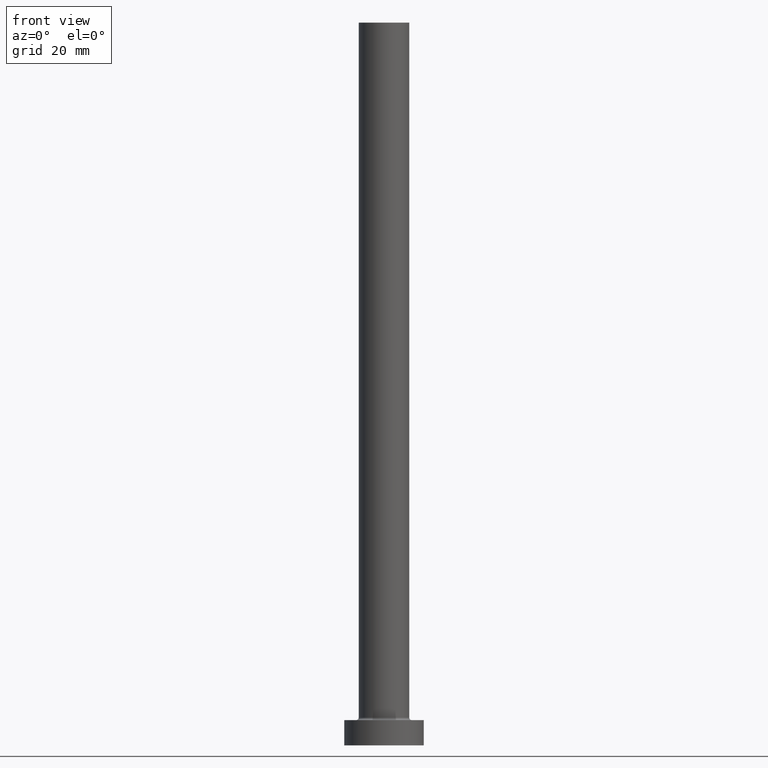
[diagram: clean part render]
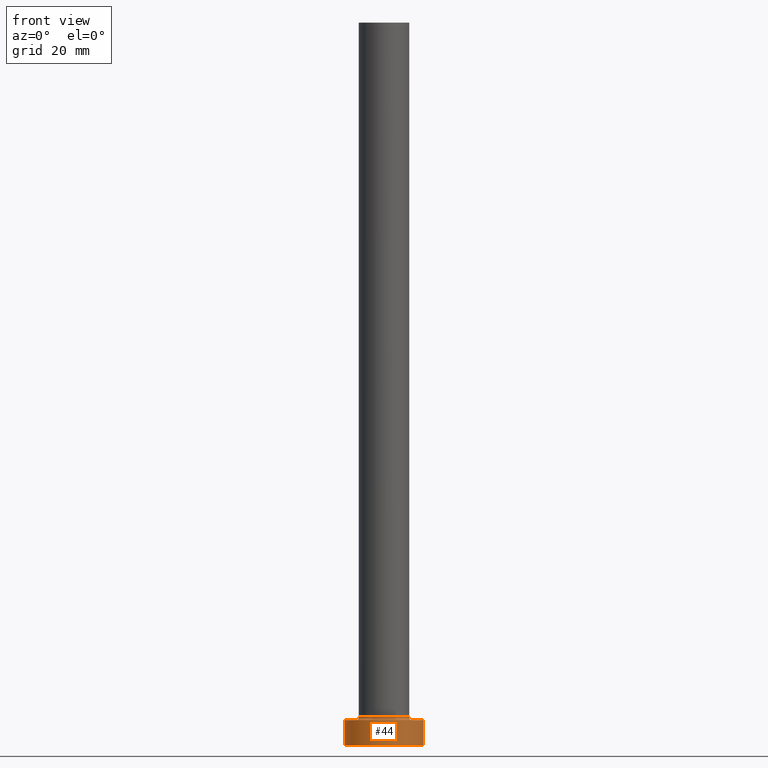
[diagram: same view with one face highlighted and labeled with its STEP entity id]
A machine part, front view. The second image highlights one B-rep face of the part: STEP entity #44.
In plain terms, the highlighted cylindrical surface (partial cylindrical patch) has radius 11 mm, axis along (-0, -0, -1).
Its self-contained STEP definition (entity closure, byte-faithful):
#7 = ORIENTED_EDGE ( 'NONE', *, *, #35, .T. ) ;
#10 = CIRCLE ( 'NONE', #163, 11.00000000000000000 ) ;
#11 = DIRECTION ( 'NONE',  ( 1.000000000000000000, 0.000000000000000000, 0.000000000000000000 ) ) ;
#18 = VERTEX_POINT ( 'NONE', #232 ) ;
#35 = EDGE_CURVE ( 'NONE', #106, #18, #225, .T. ) ;
#44 = ADVANCED_FACE ( 'NONE', ( #369 ), #409, .T. ) ;
#50 = DIRECTION ( 'NONE',  ( 0.000000000000000000, 0.000000000000000000, 1.000000000000000000 ) ) ;
#91 = DIRECTION ( 'NONE',  ( -0.000000000000000000, -0.000000000000000000, -1.000000000000000000 ) ) ;
#106 = VERTEX_POINT ( 'NONE', #271 ) ;
#115 = CARTESIAN_POINT ( 'NONE',  ( 0.000000000000000000, 0.000000000000000000, 7.000000000000000000 ) ) ;
#116 = DIRECTION ( 'NONE',  ( -1.000000000000000000, 0.000000000000000000, 0.000000000000000000 ) ) ;
#126 = VERTEX_POINT ( 'NONE', #410 ) ;
#135 = VERTEX_POINT ( 'NONE', #455 ) ;
#137 = EDGE_CURVE ( 'NONE', #126, #135, #160, .T. ) ;
#151 = DIRECTION ( 'NONE',  ( -0.000000000000000000, -0.000000000000000000, -1.000000000000000000 ) ) ;
#160 = LINE ( 'NONE', #279, #200 ) ;
#163 = AXIS2_PLACEMENT_3D ( 'NONE', #365, #334, #11 ) ;
#176 = ORIENTED_EDGE ( 'NONE', *, *, #449, .T. ) ;
#187 = AXIS2_PLACEMENT_3D ( 'NONE', #115, #151, #116 ) ;
#191 = ORIENTED_EDGE ( 'NONE', *, *, #137, .F. ) ;
#200 = VECTOR ( 'NONE', #91, 1000.000000000000000 ) ;
#225 = LINE ( 'NONE', #295, #421 ) ;
#232 = CARTESIAN_POINT ( 'NONE',  ( -11.00000000000000000, 0.000000000000000000, 0.000000000000000000 ) ) ;
#271 = CARTESIAN_POINT ( 'NONE',  ( -11.00000000000000000, 0.000000000000000000, 7.000000000000000000 ) ) ;
#273 = CIRCLE ( 'NONE', #450, 11.00000000000000000 ) ;
#279 = CARTESIAN_POINT ( 'NONE',  ( 11.00000000000000000, 1.347111479062088405E-15, 7.000000000000000000 ) ) ;
#295 = CARTESIAN_POINT ( 'NONE',  ( -11.00000000000000000, 0.000000000000000000, 7.000000000000000000 ) ) ;
#334 = DIRECTION ( 'NONE',  ( 0.000000000000000000, 0.000000000000000000, 1.000000000000000000 ) ) ;
#364 = EDGE_CURVE ( 'NONE', #106, #126, #10, .T. ) ;
#365 = CARTESIAN_POINT ( 'NONE',  ( 0.000000000000000000, 0.000000000000000000, 7.000000000000000000 ) ) ;
#367 = DIRECTION ( 'NONE',  ( -0.000000000000000000, -0.000000000000000000, -1.000000000000000000 ) ) ;
#369 = FACE_OUTER_BOUND ( 'NONE', #434, .T. ) ;
#376 = CARTESIAN_POINT ( 'NONE',  ( 0.000000000000000000, 0.000000000000000000, 0.000000000000000000 ) ) ;
#381 = DIRECTION ( 'NONE',  ( 1.000000000000000000, 0.000000000000000000, 0.000000000000000000 ) ) ;
#409 = CYLINDRICAL_SURFACE ( 'NONE', #187, 11.00000000000000000 ) ;
#410 = CARTESIAN_POINT ( 'NONE',  ( 11.00000000000000000, 1.347111479062088405E-15, 7.000000000000000000 ) ) ;
#421 = VECTOR ( 'NONE', #367, 1000.000000000000000 ) ;
#434 = EDGE_LOOP ( 'NONE', ( #191, #445, #7, #176 ) ) ;
#445 = ORIENTED_EDGE ( 'NONE', *, *, #364, .F. ) ;
#449 = EDGE_CURVE ( 'NONE', #18, #135, #273, .T. ) ;
#450 = AXIS2_PLACEMENT_3D ( 'NONE', #376, #50, #381 ) ;
#455 = CARTESIAN_POINT ( 'NONE',  ( 11.00000000000000000, 1.347111479062088405E-15, 0.000000000000000000 ) ) ;